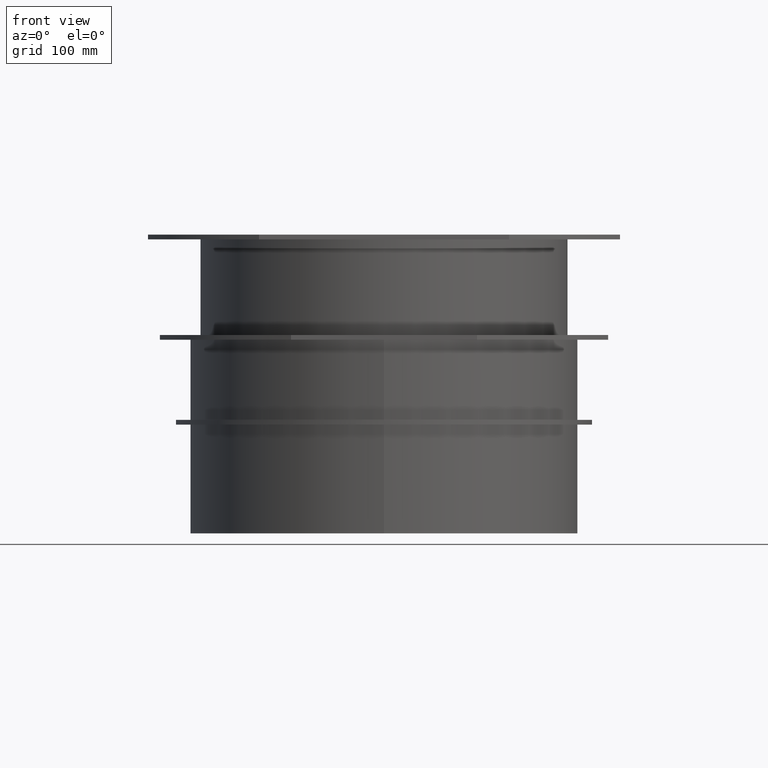
[diagram: clean part render]
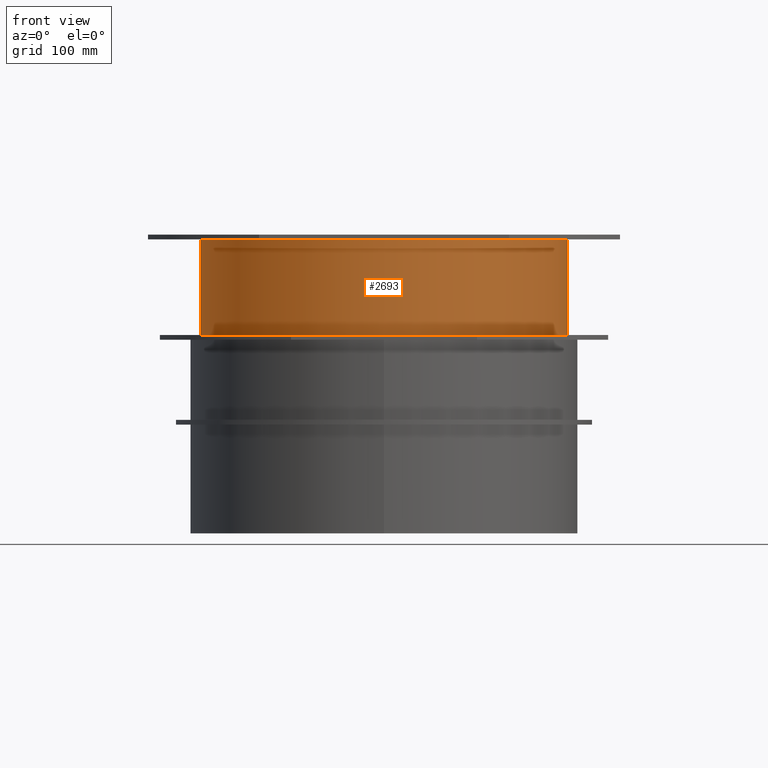
[diagram: same view with one face highlighted and labeled with its STEP entity id]
A machine part, front view. The second image highlights one B-rep face of the part: STEP entity #2693.
In plain terms, the highlighted cylindrical surface (bore or boss wall) has radius 153.5 mm, axis along (0, -0, 1).
Its self-contained STEP definition (entity closure, byte-faithful):
#147=CYLINDRICAL_SURFACE('',#2853,153.5);
#314=FACE_OUTER_BOUND('',#481,.T.);
#481=EDGE_LOOP('',(#2438,#2439,#2440,#2441));
#496=CIRCLE('',#2737,153.5);
#511=CIRCLE('',#2841,153.5);
#787=LINE('',#4785,#1063);
#1063=VECTOR('',#3406,153.5);
#1084=VERTEX_POINT('',#3476);
#1315=VERTEX_POINT('',#4765);
#1341=EDGE_CURVE('',#1084,#1084,#496,.T.);
#1684=EDGE_CURVE('',#1315,#1315,#511,.T.);
#1691=EDGE_CURVE('',#1315,#1084,#787,.T.);
#2438=ORIENTED_EDGE('',*,*,#1684,.T.);
#2439=ORIENTED_EDGE('',*,*,#1691,.T.);
#2440=ORIENTED_EDGE('',*,*,#1341,.T.);
#2441=ORIENTED_EDGE('',*,*,#1691,.F.);
#2693=ADVANCED_FACE('',(#314),#147,.T.);
#2737=AXIS2_PLACEMENT_3D('',#3477,#2912,#2913);
#2841=AXIS2_PLACEMENT_3D('',#4766,#3374,#3375);
#2853=AXIS2_PLACEMENT_3D('',#4784,#3404,#3405);
#2912=DIRECTION('center_axis',(2.22044604925031E-16,-4.93038065763132E-32,
1.));
#2913=DIRECTION('ref_axis',(-2.22044604925031E-16,-1.,0.));
#3374=DIRECTION('center_axis',(-2.22044604925031E-16,4.93038065763132E-32,
-1.));
#3375=DIRECTION('ref_axis',(-2.22044604925031E-16,-1.,0.));
#3404=DIRECTION('center_axis',(2.22044604925031E-16,-4.93038065763132E-32,
1.));
#3405=DIRECTION('ref_axis',(-2.22044604925031E-16,-1.,0.));
#3406=DIRECTION('',(-2.22044604925031E-16,4.93038065763132E-32,-1.));
#3476=CARTESIAN_POINT('',(1.62847192112431E-14,153.5,-84.));
#3477=CARTESIAN_POINT('Origin',(9.9920072216264E-16,-2.21867129593409E-31,
-84.));
#4765=CARTESIAN_POINT('',(3.40482876052456E-14,153.5,-3.99999999999999));
#4766=CARTESIAN_POINT('Origin',(1.87627691161651E-14,-4.16617165569847E-30,
-3.99999999999999));
#4784=CARTESIAN_POINT('Origin',(0.,0.,-88.5));
#4785=CARTESIAN_POINT('',(1.52855184890804E-14,153.5,-88.5));